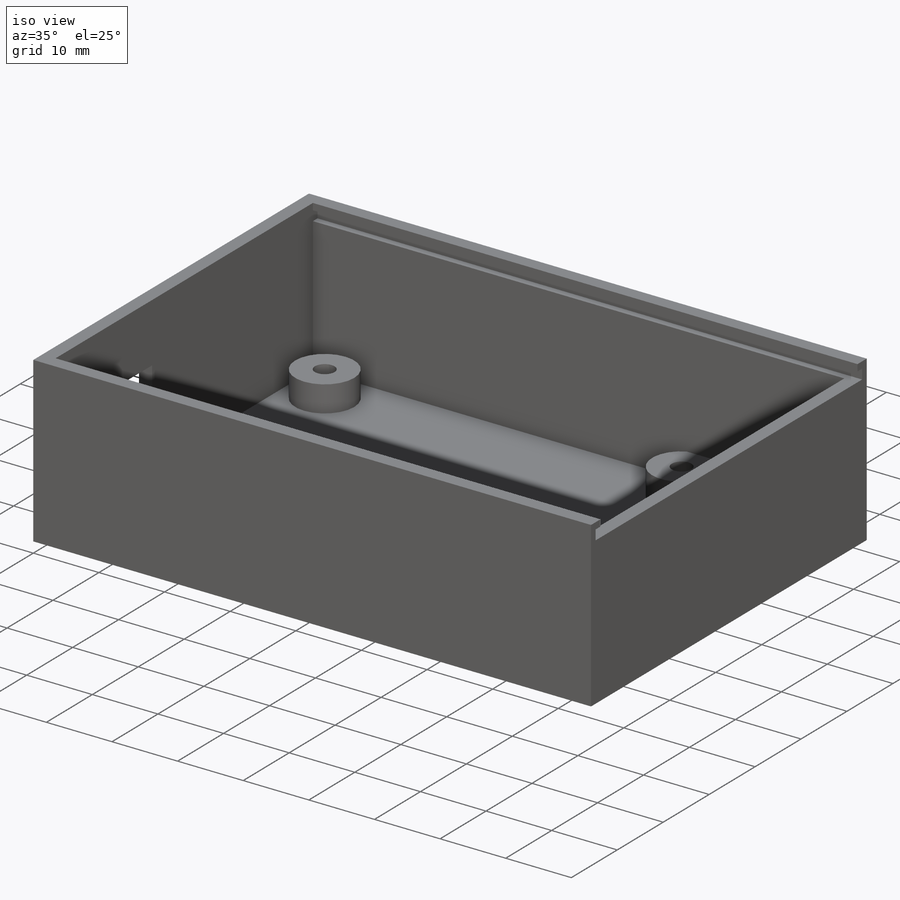
[diagram: iso view]
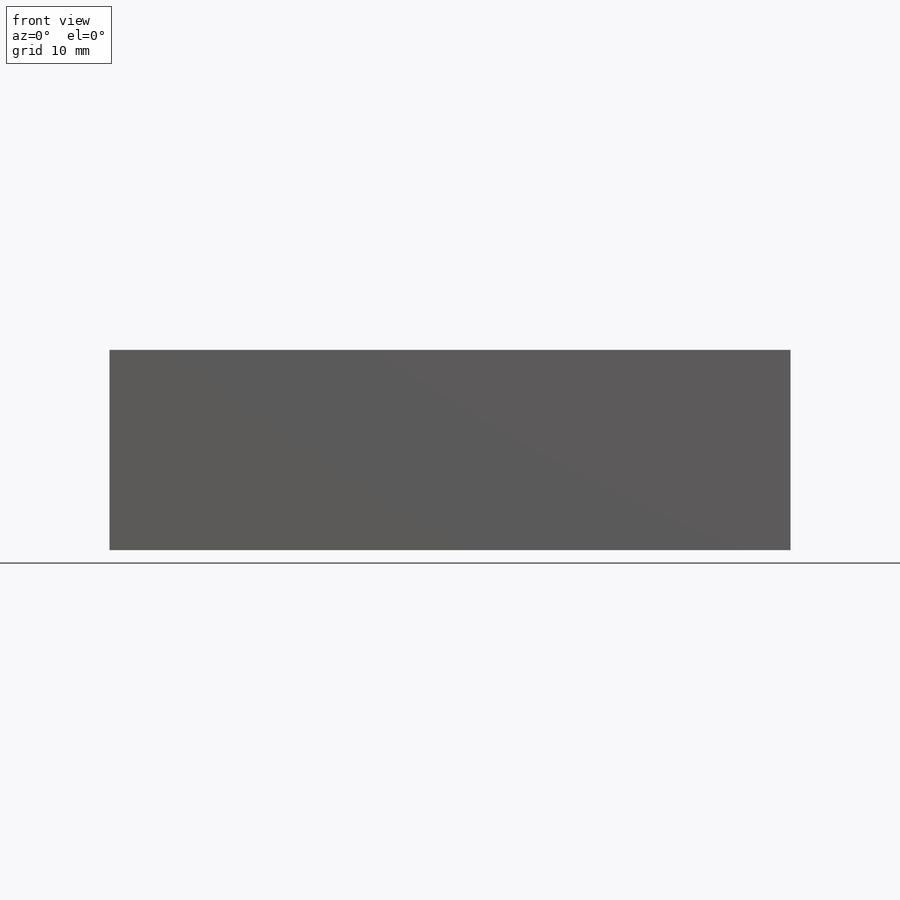
[diagram: front view]
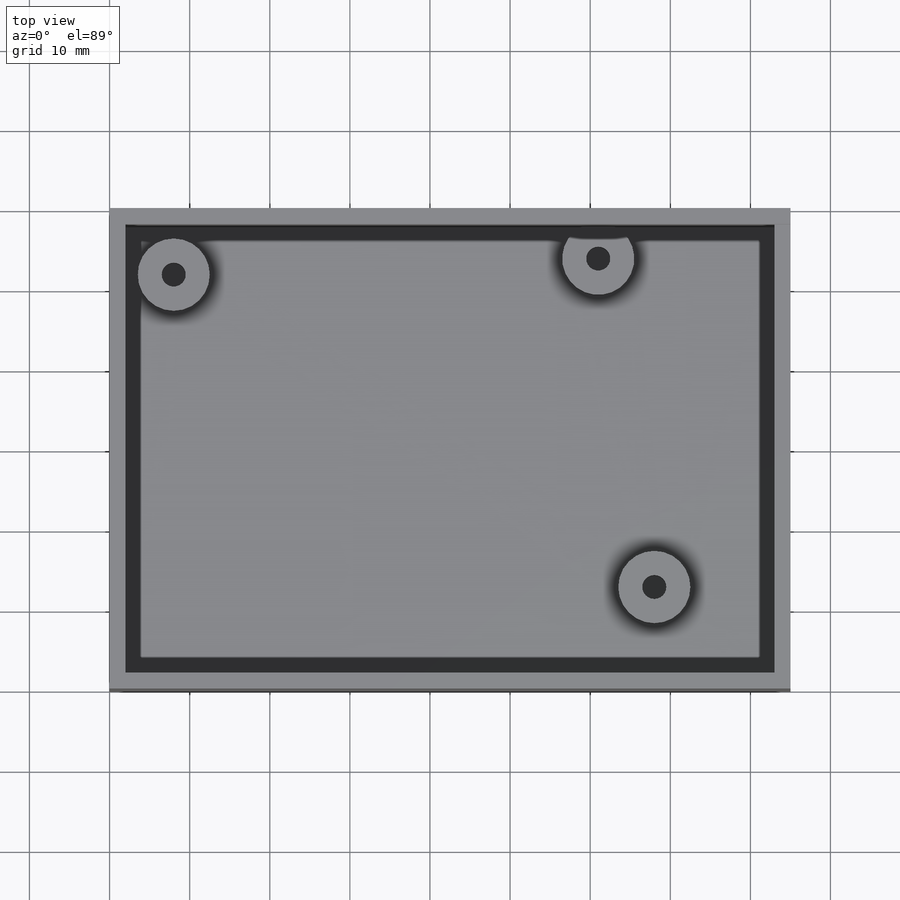
[diagram: top view]
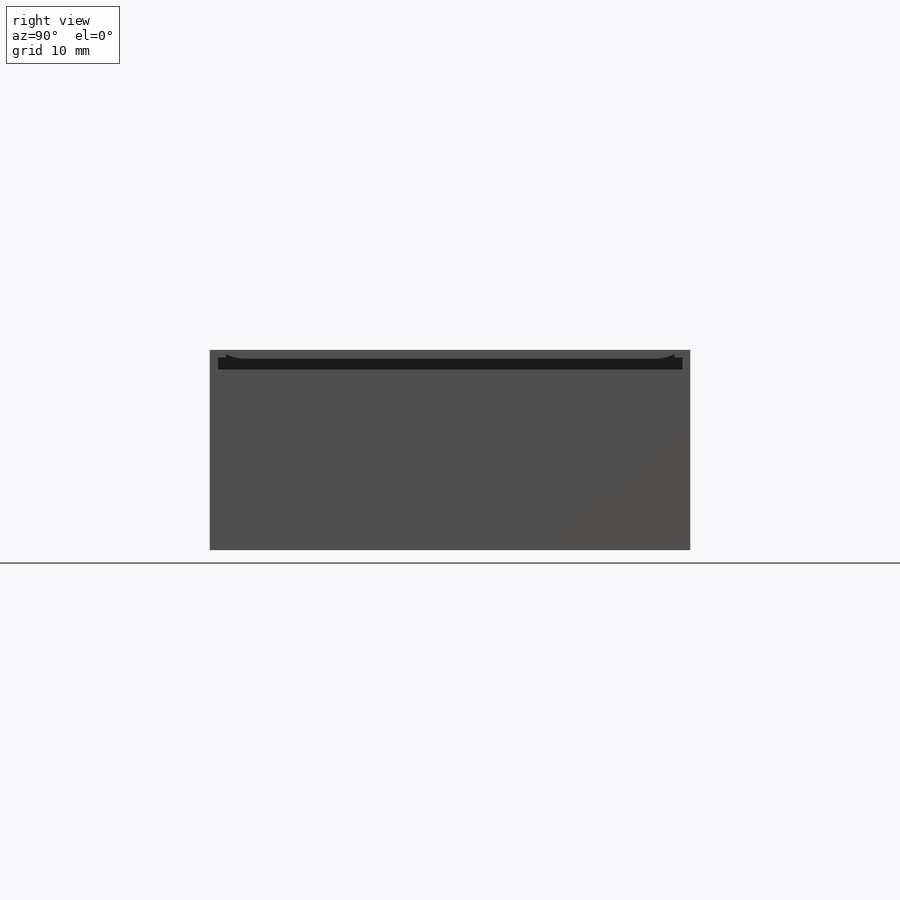
[diagram: right view]
SOLIDWORKS PART (.sldprt)
format: sldprt  version: not decoded by parser v0  size: 252,416 bytes
history: native  units: mm
features: sketch x5, plane x3, cut_extrude x3, extrude x2, material x1, shell x1 (+9 scaffold rows collapsed)
feature tree (24):
  scaffold x9  (default folders/planes/origin — collapsed)
  material  "Material <nicht festgelegt>"
  plane  "Ebene vorne"
  plane  "Ebene oben"
  plane  "Ebene rechts"
  sketch  "Skizze1"  dims[D1=85.0mm D2=60.0mm]
  extrude  "Aufsatz-Linear austragen1"  Depth=25mm
  shell  "Wandung1"  Thickness=2mm
  sketch  "Skizze2"  dims[c1.D3=3.0mm c1.D4=~15.521764mm c1.D7=3.0mm c1.D8=3.0mm c1.D11=3.0mm c1.D12=~11.552935mm c1.D1=6.0mm c1.D2=6.0mm c2.D4=3.0mm c2.D5=4.0mm c2.D6=53.0mm c2.D8=3.0mm c2.D9=41.0mm c2.D10=7.0mm c2.D12=3.0mm c2.D13=11.0mm]
  extrude  "Aufsatz-Linear austragen2"  Depth=4mm
  sketch  "Skizze3"  dims[D1=16.0mm D2=5.0mm D3=10.0mm D4=13.0mm]
  cut_extrude  "Schnitt-Linear austragen1"  [1 undecoded]
  sketch  "Skizze4"  dims[D1=2.0mm D2=2.0mm D3=1.0mm]
  sketch  "Skizze5"  dims[D1=1.0mm D2=1.0mm D3=1.5mm D4=1.0mm]
  cut_extrude  "Schnitt-Linear austragen2"  [1 undecoded]
  cut_extrude  "Schnitt-Linear austragen3"  [1 undecoded]
decode coverage: 8 of 11 modeling features carry decoded parameters
note: ~ marks probable driven/reference dimensions
note: 3 parameter values undecoded
summary: no parameter record found for 3 features
note: suppression state not decoded; provenance and decode notes live in map.json
